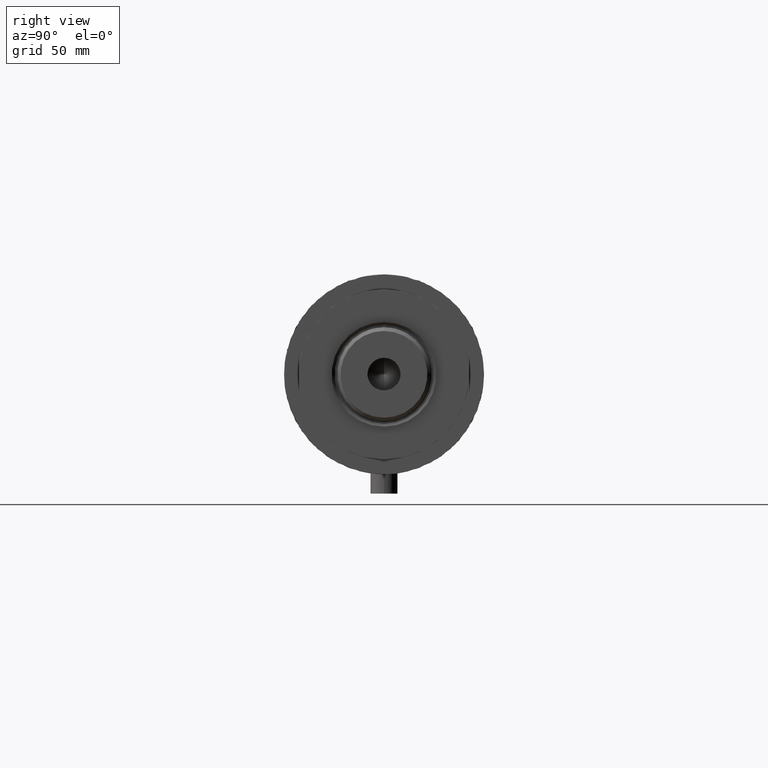
[diagram: clean part render]
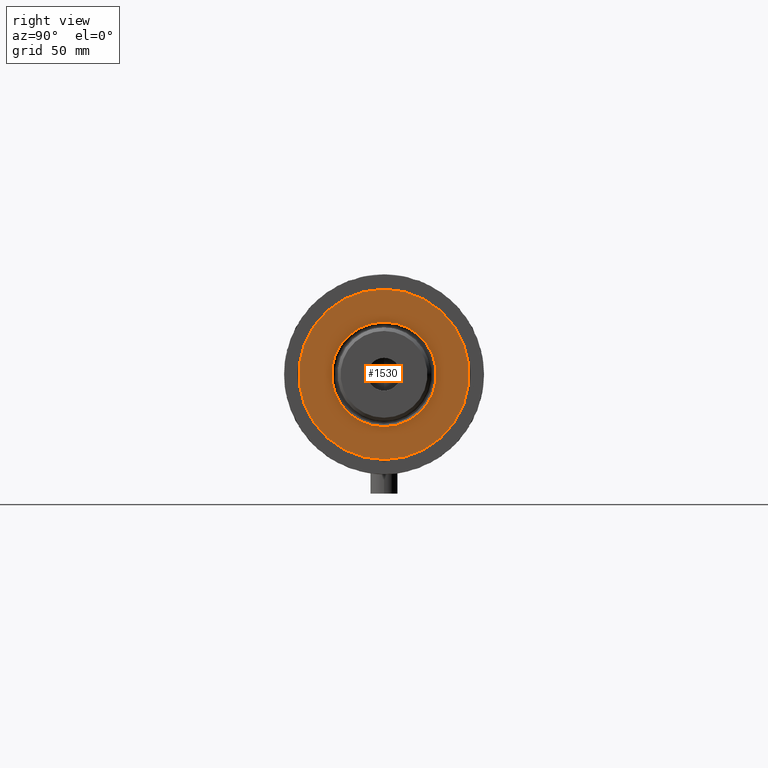
[diagram: same view with one face highlighted and labeled with its STEP entity id]
A machine part, right view. The second image highlights one B-rep face of the part: STEP entity #1530.
In plain terms, the highlighted planar face has unit normal (1, 0, -0).
Its self-contained STEP definition (entity closure, byte-faithful):
#165 = CIRCLE ( 'NONE', #907, 23.05000000000002913 ) ;
#391 = EDGE_CURVE ( 'NONE', #936, #1167, #3109, .T. ) ;
#467 = CIRCLE ( 'NONE', #1058, 37.50000000000000711 ) ;
#489 = DIRECTION ( 'NONE',  ( 0.000000000000000000, 0.000000000000000000, 1.000000000000000000 ) ) ;
#692 = AXIS2_PLACEMENT_3D ( 'NONE', #2631, #489, #813 ) ;
#772 = DIRECTION ( 'NONE',  ( 0.000000000000000000, 0.000000000000000000, 1.000000000000000000 ) ) ;
#803 = EDGE_LOOP ( 'NONE', ( #3194, #3051 ) ) ;
#813 = DIRECTION ( 'NONE',  ( 1.000000000000000000, 0.000000000000000000, 0.000000000000000000 ) ) ;
#907 = AXIS2_PLACEMENT_3D ( 'NONE', #2687, #4422, #2705 ) ;
#936 = VERTEX_POINT ( 'NONE', #1952 ) ;
#1039 = DIRECTION ( 'NONE',  ( 1.000000000000000000, 0.000000000000000000, -0.000000000000000000 ) ) ;
#1058 = AXIS2_PLACEMENT_3D ( 'NONE', #2102, #3499, #1415 ) ;
#1139 = PLANE ( 'NONE',  #2086 ) ;
#1167 = VERTEX_POINT ( 'NONE', #4536 ) ;
#1197 = ORIENTED_EDGE ( 'NONE', *, *, #1424, .T. ) ;
#1337 = VERTEX_POINT ( 'NONE', #1599 ) ;
#1415 = DIRECTION ( 'NONE',  ( 1.000000000000000000, 0.000000000000000000, 0.000000000000000000 ) ) ;
#1424 = EDGE_CURVE ( 'NONE', #1167, #936, #165, .T. ) ;
#1530 = ADVANCED_FACE ( 'NONE', ( #1796, #3206 ), #1139, .T. ) ;
#1599 = CARTESIAN_POINT ( 'NONE',  ( 37.50000000000000711, 4.592425496802575156E-15, 59.89999999999999147 ) ) ;
#1627 = EDGE_CURVE ( 'NONE', #4278, #1337, #467, .T. ) ;
#1796 = FACE_BOUND ( 'NONE', #3629, .T. ) ;
#1834 = CARTESIAN_POINT ( 'NONE',  ( -37.50000000000000711, 0.000000000000000000, 59.89999999999999147 ) ) ;
#1952 = CARTESIAN_POINT ( 'NONE',  ( 23.05000000000002913, 0.000000000000000000, 59.89999999999999147 ) ) ;
#1998 = DIRECTION ( 'NONE',  ( -0.000000000000000000, -0.000000000000000000, -1.000000000000000000 ) ) ;
#2086 = AXIS2_PLACEMENT_3D ( 'NONE', #4215, #772, #1039 ) ;
#2102 = CARTESIAN_POINT ( 'NONE',  ( 0.000000000000000000, 0.000000000000000000, 59.89999999999999147 ) ) ;
#2425 = EDGE_CURVE ( 'NONE', #1337, #4278, #3132, .T. ) ;
#2631 = CARTESIAN_POINT ( 'NONE',  ( 0.000000000000000000, 0.000000000000000000, 59.89999999999999147 ) ) ;
#2687 = CARTESIAN_POINT ( 'NONE',  ( 0.000000000000000000, 0.000000000000000000, 59.89999999999999147 ) ) ;
#2705 = DIRECTION ( 'NONE',  ( 1.000000000000000000, 0.000000000000000000, 0.000000000000000000 ) ) ;
#3051 = ORIENTED_EDGE ( 'NONE', *, *, #2425, .T. ) ;
#3109 = CIRCLE ( 'NONE', #4344, 23.05000000000002913 ) ;
#3132 = CIRCLE ( 'NONE', #692, 37.50000000000000711 ) ;
#3194 = ORIENTED_EDGE ( 'NONE', *, *, #1627, .T. ) ;
#3206 = FACE_OUTER_BOUND ( 'NONE', #803, .T. ) ;
#3402 = DIRECTION ( 'NONE',  ( 1.000000000000000000, 0.000000000000000000, 0.000000000000000000 ) ) ;
#3499 = DIRECTION ( 'NONE',  ( 0.000000000000000000, 0.000000000000000000, 1.000000000000000000 ) ) ;
#3629 = EDGE_LOOP ( 'NONE', ( #4193, #1197 ) ) ;
#3742 = CARTESIAN_POINT ( 'NONE',  ( 0.000000000000000000, 0.000000000000000000, 59.89999999999999147 ) ) ;
#4193 = ORIENTED_EDGE ( 'NONE', *, *, #391, .T. ) ;
#4215 = CARTESIAN_POINT ( 'NONE',  ( 0.000000000000000000, 0.000000000000000000, 59.89999999999999147 ) ) ;
#4278 = VERTEX_POINT ( 'NONE', #1834 ) ;
#4344 = AXIS2_PLACEMENT_3D ( 'NONE', #3742, #1998, #3402 ) ;
#4422 = DIRECTION ( 'NONE',  ( -0.000000000000000000, -0.000000000000000000, -1.000000000000000000 ) ) ;
#4536 = CARTESIAN_POINT ( 'NONE',  ( -23.05000000000002913, 2.822810872034651791E-15, 59.89999999999999147 ) ) ;